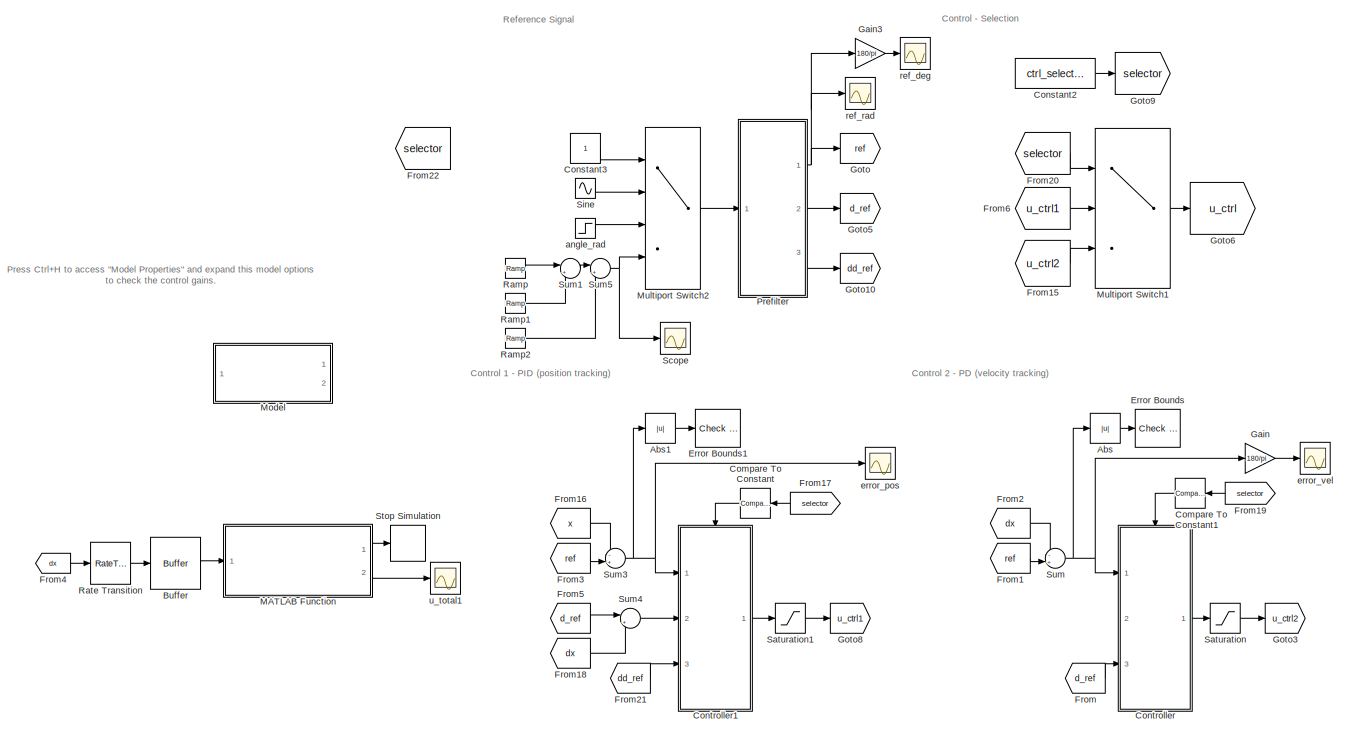
[diagram: root canvas - part 1/2, full width, middle band]
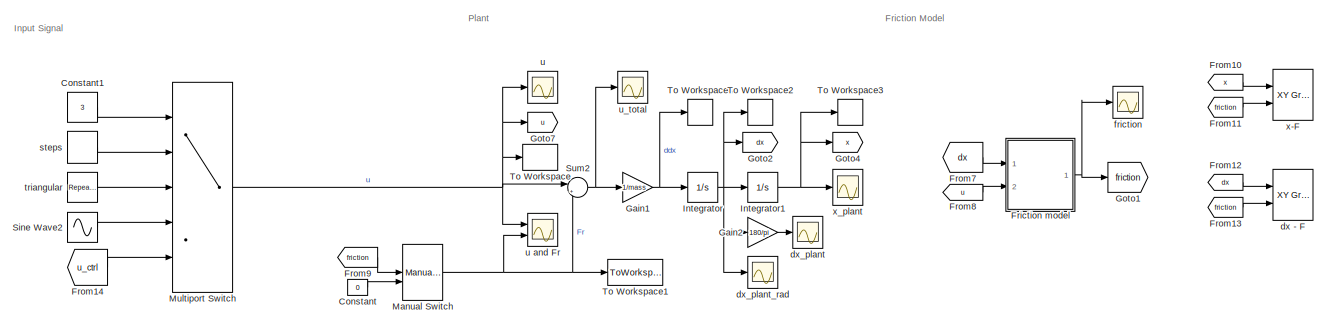
[diagram: root canvas - part 2/2, full width, bottom band]
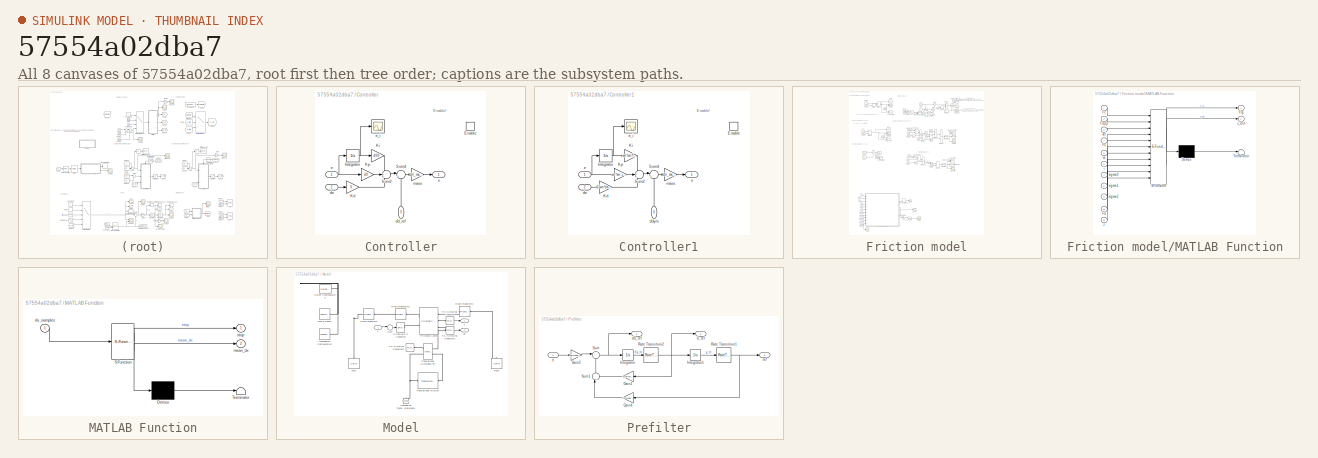
[diagram: thumbnail index - all 8 canvases of the model, root first then tree order]
MODEL slx_57554a02dba7
KIND model
CONFIG AbsTol = auto
CONFIG EnableMultiTasking = off
CONFIG FixedStep = 1e-3
CONFIG MaxStep = auto
CONFIG MinStep = auto
CONFIG RelTol = 1e-3
CONFIG SampleTimeConstraint = Unconstrained
CONFIG Solver = ode8
CONFIG SolverName = ode8
CONFIG StartTime = 0.0
CONFIG StopTime = 10
BLOCK [Abs] Abs
  SaturateOnIntegerOverflow = off
BLOCK [Abs] Abs1
  SaturateOnIntegerOverflow = off
BLOCK [Buffer] Buffer
  Commented = on
  N = 2/ts_buffer_stop
  OutputFrames = off
  V = 2/ts_buffer_stop - 1
  ic = (tol_ss + 1) * ones(2/ts_buffer_stop,1)
BLOCK [Reference] Compare To Constant  REF=simulink/Logic and Bit
Operations/Compare
To Constant
  Ports = [1, 1]
  SourceBlock = simulink/Logic and Bit\nOperations/Compare\nTo Constant
  SourceProductBaseCode = SL
  SourceProductName = Simulink
  SourceType = Compare To Constant
BLOCK [Reference] Compare To Constant1  REF=simulink/Logic and Bit
Operations/Compare
To Constant
  Ports = [1, 1]
  SourceBlock = simulink/Logic and Bit\nOperations/Compare\nTo Constant
  SourceProductBaseCode = SL
  SourceProductName = Simulink
  SourceType = Compare To Constant
BLOCK [Constant] Constant
  Value = 0
BLOCK [Constant] Constant1
  Value = 3
BLOCK [Constant] Constant2
  Value = ctrl_selector
BLOCK [Constant] Constant3
BLOCK [SubSystem] Controller
  Ports = [3, 1, 1]
  RequestExecContextInheritance = off
  Variant = off
BLOCK [EnablePort] Controller/Enable
  Ports = []
BLOCK [Integrator] Controller/Integrator
  Ports = [1, 1]
BLOCK [Gain] Controller/Kd
  Gain = 0
  OutDataTypeStr = Inherit: Inherit via internal rule
  ParamDataTypeStr = Inherit: Inherit via internal rule
  SaturateOnIntegerOverflow = off
BLOCK [Gain] Controller/Ki
  Gain = 400
  OutDataTypeStr = Inherit: Inherit via internal rule
  ParamDataTypeStr = Inherit: Inherit via internal rule
  SaturateOnIntegerOverflow = off
BLOCK [Gain] Controller/Kp
  Gain = 40
  OutDataTypeStr = Inherit: Inherit via internal rule
  ParamDataTypeStr = Inherit: Inherit via internal rule
  SaturateOnIntegerOverflow = off
BLOCK [Sum] Controller/Sum2
  IconShape = round
  InputSameDT = off
  Inputs = +++
  OutDataTypeStr = Inherit: Inherit via internal rule
  Ports = [3, 1]
  SaturateOnIntegerOverflow = off
BLOCK [Sum] Controller/Sum4
  IconShape = round
  InputSameDT = off
  Inputs = |++
  OutDataTypeStr = Inherit: Inherit via internal rule
  Ports = [2, 1]
  SaturateOnIntegerOverflow = off
BLOCK [Inport] Controller/dd_ref
  IconDisplay = Port number
  Port = 3
  SampleTime = ctrl_ts
BLOCK [Inport] Controller/de
  IconDisplay = Port number
  Port = 2
  SampleTime = ctrl_ts
BLOCK [Inport] Controller/e
  IconDisplay = Port number
  SampleTime = ctrl_ts
BLOCK [Scope] Controller/e_i
  NumInputPorts = 1
  Ports = [1]
  ScopeSpecificationString = Simulink.scopes.TimeScopeBlockCfg('CurrentConfiguration', extmgr.ConfigurationSet(extmgr.Configuration('Core','General UI',true),extmgr.Configuration('Core','Source UI',true),extmgr.Configuration('Sources','WiredSimulink',true,'DataLoggingVariableName','ScopeData1'),extmgr.Configuration('Visuals','Time Domain',true,'SerializedDisplays',{struct('MinYLimReal','-0.0000088','MaxYLimReal','0.000001','Y...<+1431ch>
BLOCK [Gain] Controller/mass
  Gain = ctrl_mass
  OutDataTypeStr = Inherit: Inherit via internal rule
  ParamDataTypeStr = Inherit: Inherit via internal rule
  SaturateOnIntegerOverflow = off
BLOCK [Outport] Controller/u
  IconDisplay = Port number
  SampleTime = ctrl_ts
BLOCK [SubSystem] Controller1
  Ports = [3, 1, 1]
  RequestExecContextInheritance = off
  Variant = off
BLOCK [EnablePort] Controller1/Enable
  Ports = []
BLOCK [Integrator] Controller1/Integrator
  Ports = [1, 1]
BLOCK [Gain] Controller1/Kd
  Gain = 2*wn*damp + far
  OutDataTypeStr = Inherit: Inherit via internal rule
  ParamDataTypeStr = Inherit: Inherit via internal rule
  SaturateOnIntegerOverflow = off
BLOCK [Gain] Controller1/Ki
  Gain = wn*wn*far
  OutDataTypeStr = Inherit: Inherit via internal rule
  ParamDataTypeStr = Inherit: Inherit via internal rule
  SaturateOnIntegerOverflow = off
BLOCK [Gain] Controller1/Kp
  Gain = wn*wn + 2*wn*damp*far
  OutDataTypeStr = Inherit: Inherit via internal rule
  ParamDataTypeStr = Inherit: Inherit via internal rule
  SaturateOnIntegerOverflow = off
BLOCK [Sum] Controller1/Sum2
  IconShape = round
  InputSameDT = off
  Inputs = +++
  OutDataTypeStr = Inherit: Inherit via internal rule
  Ports = [3, 1]
  SaturateOnIntegerOverflow = off
BLOCK [Sum] Controller1/Sum4
  IconShape = round
  InputSameDT = off
  Inputs = |++
  OutDataTypeStr = Inherit: Inherit via internal rule
  Ports = [2, 1]
  SaturateOnIntegerOverflow = off
BLOCK [Inport] Controller1/ddym
  IconDisplay = Port number
  Port = 3
  SampleTime = ctrl_ts
BLOCK [Inport] Controller1/de
  IconDisplay = Port number
  Port = 2
  SampleTime = ctrl_ts
BLOCK [Inport] Controller1/e
  IconDisplay = Port number
  SampleTime = ctrl_ts
BLOCK [Scope] Controller1/e_i
  NumInputPorts = 1
  Ports = [1]
  ScopeSpecificationString = Simulink.scopes.TimeScopeBlockCfg('CurrentConfiguration', extmgr.ConfigurationSet(extmgr.Configuration('Core','General UI',true),extmgr.Configuration('Core','Source UI',true),extmgr.Configuration('Sources','WiredSimulink',true,'DataLoggingVariableName','ScopeData1'),extmgr.Configuration('Visuals','Time Domain',true,'SerializedDisplays',{struct('MinYLimReal','-0.000844','MaxYLimReal','-0.000799','Y...<+1427ch>
BLOCK [Gain] Controller1/mass
  Gain = ctrl_mass
  OutDataTypeStr = Inherit: Inherit via internal rule
  ParamDataTypeStr = Inherit: Inherit via internal rule
  SaturateOnIntegerOverflow = off
BLOCK [Outport] Controller1/u
  IconDisplay = Port number
  SampleTime = ctrl_ts
BLOCK [Reference] Error Bounds  REF=checkpacklib/Check Custom Bounds
  InstantiateOnLoad = on
  Ports = [1]
  SourceBlock = checkpacklib/Check Custom Bounds
  SourceType = Checks_CustomBounds
BLOCK [Reference] Error Bounds1  REF=checkpacklib/Check Custom Bounds
  InstantiateOnLoad = on
  Ports = [1]
  SourceBlock = checkpacklib/Check Custom Bounds
  SourceType = Checks_CustomBounds
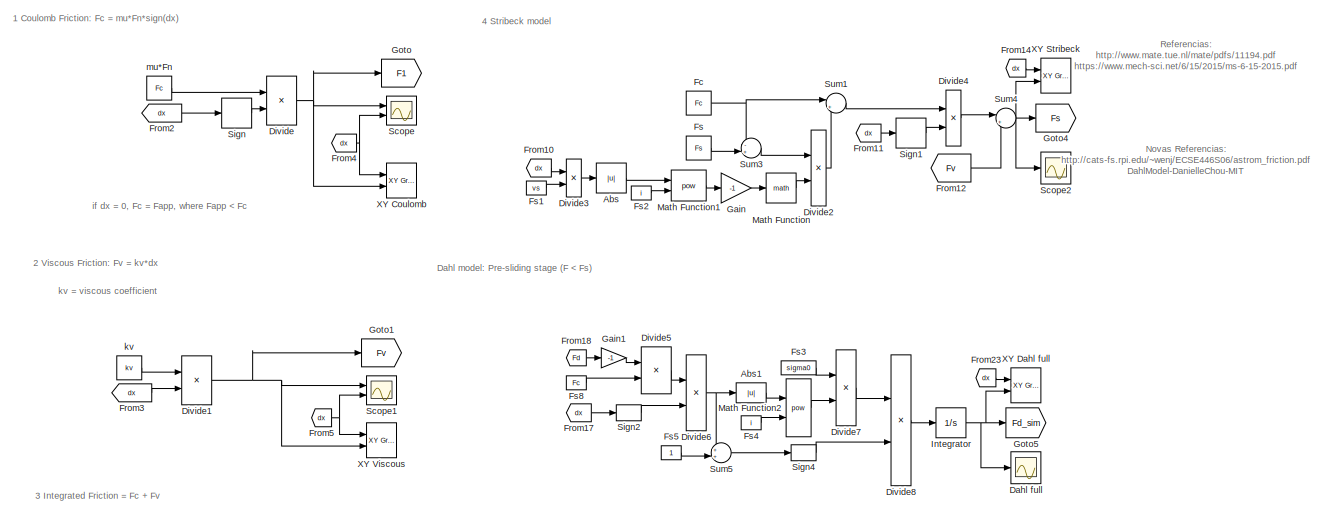
[diagram: Friction model - part 1/2, full width, top band]
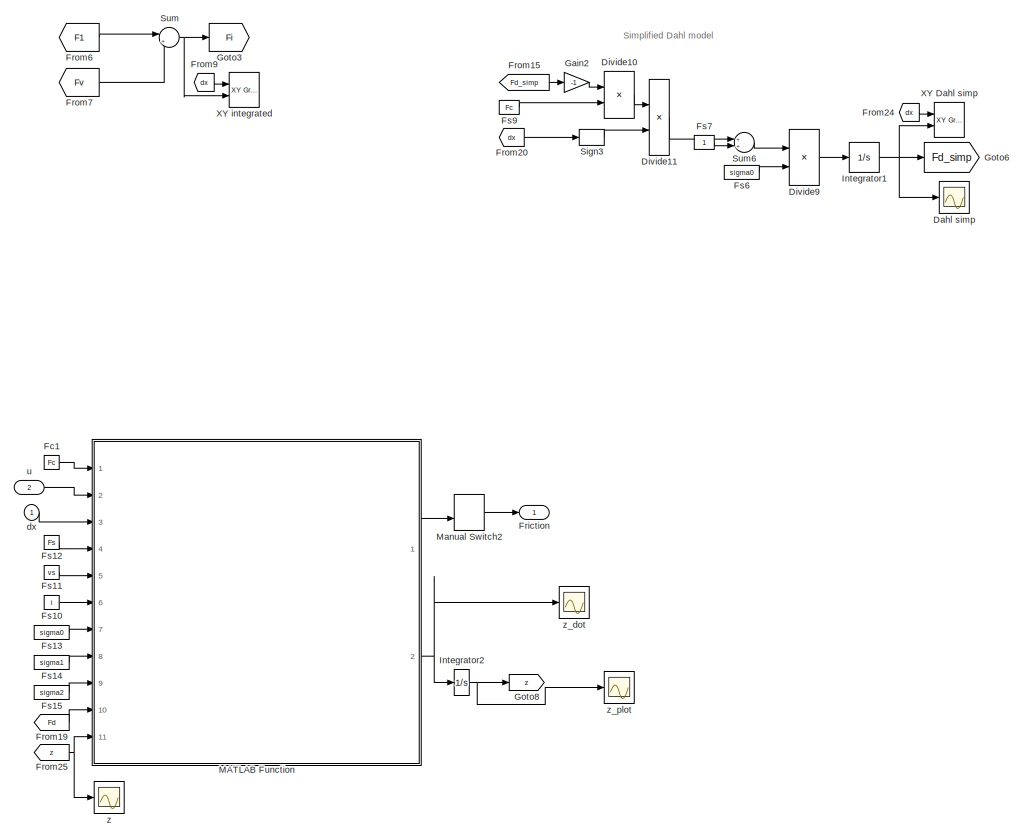
[diagram: Friction model - part 2/2, full width, bottom band]
BLOCK [SubSystem] Friction model
  Ports = [2, 1]
  RequestExecContextInheritance = off
  Variant = off
BLOCK [Abs] Friction model/Abs
  Commented = on
  SaturateOnIntegerOverflow = off
BLOCK [Abs] Friction model/Abs1
  Commented = on
  SaturateOnIntegerOverflow = off
BLOCK [Scope] Friction model/Dahl full
  Commented = on
  NumInputPorts = 1
  Ports = [1]
  ScopeSpecificationString = Simulink.scopes.TimeScopeBlockCfg('CurrentConfiguration', extmgr.ConfigurationSet(extmgr.Configuration('Core','General UI',true),extmgr.Configuration('Core','Source UI',true),extmgr.Configuration('Sources','WiredSimulink',true,'DataLoggingVariableName','ScopeData5'),extmgr.Configuration('Visuals','Time Domain',true,'SerializedDisplays',{struct('MinYLimReal','2.00000','MaxYLimReal','4.00000','YLabe...<+1397ch>
BLOCK [Scope] Friction model/Dahl simp
  Commented = on
  NumInputPorts = 1
  Ports = [1]
  ScopeSpecificationString = Simulink.scopes.TimeScopeBlockCfg('CurrentConfiguration', extmgr.ConfigurationSet(extmgr.Configuration('Core','General UI',true),extmgr.Configuration('Core','Source UI',true),extmgr.Configuration('Sources','WiredSimulink',true,'DataLoggingVariableName','ScopeData6'),extmgr.Configuration('Visuals','Time Domain',true,'SerializedDisplays',{struct('MinYLimReal','2.12965','MaxYLimReal','10.83312','YLab...<+1400ch>
BLOCK [Product] Friction model/Divide
  Commented = on
  InputSameDT = off
  Inputs = **
  OutDataTypeStr = Inherit: Inherit via internal rule
  Ports = [2, 1]
  RndMeth = Floor
  SaturateOnIntegerOverflow = off
BLOCK [Product] Friction model/Divide1
  Commented = on
  InputSameDT = off
  Inputs = **
  OutDataTypeStr = Inherit: Inherit via internal rule
  Ports = [2, 1]
  RndMeth = Floor
  SaturateOnIntegerOverflow = off
BLOCK [Product] Friction model/Divide10
  Commented = on
  InputSameDT = off
  Inputs = */
  OutDataTypeStr = Inherit: Inherit via internal rule
  Ports = [2, 1]
  RndMeth = Floor
  SaturateOnIntegerOverflow = off
BLOCK [Product] Friction model/Divide11
  Commented = on
  InputSameDT = off
  Inputs = **
  OutDataTypeStr = Inherit: Inherit via internal rule
  Ports = [2, 1]
  RndMeth = Floor
  SaturateOnIntegerOverflow = off
BLOCK [Product] Friction model/Divide2
  Commented = on
  InputSameDT = off
  Inputs = **
  OutDataTypeStr = Inherit: Inherit via internal rule
  Ports = [2, 1]
  RndMeth = Floor
  SaturateOnIntegerOverflow = off
BLOCK [Product] Friction model/Divide3
  Commented = on
  InputSameDT = off
  Inputs = */
  OutDataTypeStr = Inherit: Inherit via internal rule
  Ports = [2, 1]
  RndMeth = Floor
  SaturateOnIntegerOverflow = off
BLOCK [Product] Friction model/Divide4
  Commented = on
  InputSameDT = off
  Inputs = **
  OutDataTypeStr = Inherit: Inherit via internal rule
  Ports = [2, 1]
  RndMeth = Floor
  SaturateOnIntegerOverflow = off
BLOCK [Product] Friction model/Divide5
  Commented = on
  InputSameDT = off
  Inputs = */
  OutDataTypeStr = Inherit: Inherit via internal rule
  Ports = [2, 1]
  RndMeth = Floor
  SaturateOnIntegerOverflow = off
BLOCK [Product] Friction model/Divide6
  Commented = on
  InputSameDT = off
  Inputs = **
  OutDataTypeStr = Inherit: Inherit via internal rule
  Ports = [2, 1]
  RndMeth = Floor
  SaturateOnIntegerOverflow = off
BLOCK [Product] Friction model/Divide7
  Commented = on
  InputSameDT = off
  Inputs = **
  OutDataTypeStr = Inherit: Inherit via internal rule
  Ports = [2, 1]
  RndMeth = Floor
  SaturateOnIntegerOverflow = off
BLOCK [Product] Friction model/Divide8
  Commented = on
  InputSameDT = off
  Inputs = **
  OutDataTypeStr = Inherit: Inherit via internal rule
  Ports = [2, 1]
  RndMeth = Floor
  SaturateOnIntegerOverflow = off
BLOCK [Product] Friction model/Divide9
  Commented = on
  InputSameDT = off
  Inputs = **
  OutDataTypeStr = Inherit: Inherit via internal rule
  Ports = [2, 1]
  RndMeth = Floor
  SaturateOnIntegerOverflow = off
BLOCK [Constant] Friction model/Fc
  Commented = on
  Value = Fc
BLOCK [Constant] Friction model/Fc1
  Value = Fc
BLOCK [Outport] Friction model/Friction
  IconDisplay = Port number
BLOCK [From] Friction model/From10
  Commented = on
  GotoTag = dx
BLOCK [From] Friction model/From11
  Commented = on
  GotoTag = dx
BLOCK [From] Friction model/From12
  Commented = on
  GotoTag = Fv
BLOCK [From] Friction model/From14
  Commented = on
  GotoTag = dx
BLOCK [From] Friction model/From15
  Commented = on
  GotoTag = Fd_simp
BLOCK [From] Friction model/From17
  Commented = on
  GotoTag = dx
BLOCK [From] Friction model/From18
  Commented = on
  GotoTag = Fd
BLOCK [From] Friction model/From19
  GotoTag = Fd
BLOCK [From] Friction model/From2
  Commented = on
  GotoTag = dx
BLOCK [From] Friction model/From20
  Commented = on
  GotoTag = dx
BLOCK [From] Friction model/From23
  Commented = on
  GotoTag = dx
BLOCK [From] Friction model/From24
  Commented = on
  GotoTag = dx
BLOCK [From] Friction model/From25
  GotoTag = z
BLOCK [From] Friction model/From3
  Commented = on
  GotoTag = dx
BLOCK [From] Friction model/From4
  Commented = on
  GotoTag = dx
BLOCK [From] Friction model/From5
  Commented = on
  GotoTag = dx
BLOCK [From] Friction model/From6
  Commented = on
  GotoTag = F1
BLOCK [From] Friction model/From7
  Commented = on
  GotoTag = Fv
BLOCK [From] Friction model/From9
  Commented = on
  GotoTag = dx
BLOCK [Constant] Friction model/Fs
  Commented = on
  Value = Fs
BLOCK [Constant] Friction model/Fs1
  Commented = on
  Value = vs
BLOCK [Constant] Friction model/Fs10
  Value = i
BLOCK [Constant] Friction model/Fs11
  Value = vs
BLOCK [Constant] Friction model/Fs12
  Value = Fs
BLOCK [Constant] Friction model/Fs13
  Value = sigma0
BLOCK [Constant] Friction model/Fs14
  Value = sigma1
BLOCK [Constant] Friction model/Fs15
  Value = sigma2
BLOCK [Constant] Friction model/Fs2
  Commented = on
  Value = i
BLOCK [Constant] Friction model/Fs3
  Commented = on
  Value = sigma0
BLOCK [Constant] Friction model/Fs4
  Commented = on
  Value = i
BLOCK [Constant] Friction model/Fs5
  Commented = on
BLOCK [Constant] Friction model/Fs6
  Commented = on
  Value = sigma0
BLOCK [Constant] Friction model/Fs7
  Commented = on
BLOCK [Constant] Friction model/Fs8
  Commented = on
  Value = Fc
BLOCK [Constant] Friction model/Fs9
  Commented = on
  Value = Fc
BLOCK [Gain] Friction model/Gain
  Commented = on
  Gain = -1
  OutDataTypeStr = Inherit: Inherit via internal rule
  ParamDataTypeStr = Inherit: Inherit via internal rule
  SaturateOnIntegerOverflow = off
BLOCK [Gain] Friction model/Gain1
  Commented = on
  Gain = -1
  OutDataTypeStr = Inherit: Inherit via internal rule
  ParamDataTypeStr = Inherit: Inherit via internal rule
  SaturateOnIntegerOverflow = off
BLOCK [Gain] Friction model/Gain2
  Commented = on
  Gain = -1
  OutDataTypeStr = Inherit: Inherit via internal rule
  ParamDataTypeStr = Inherit: Inherit via internal rule
  SaturateOnIntegerOverflow = off
BLOCK [Goto] Friction model/Goto
  Commented = on
  GotoTag = F1
BLOCK [Goto] Friction model/Goto1
  Commented = on
  GotoTag = Fv
BLOCK [Goto] Friction model/Goto3
  Commented = on
  GotoTag = Fi
BLOCK [Goto] Friction model/Goto4
  Commented = on
  GotoTag = Fs
BLOCK [Goto] Friction model/Goto5
  Commented = on
  GotoTag = Fd_sim
BLOCK [Goto] Friction model/Goto6
  Commented = on
  GotoTag = Fd_simp
BLOCK [Goto] Friction model/Goto8
  GotoTag = z
BLOCK [Integrator] Friction model/Integrator
  Commented = on
  InitialCondition = Fc
  Ports = [1, 1]
BLOCK [Integrator] Friction model/Integrator1
  Commented = on
  InitialCondition = Fc
  Ports = [1, 1]
BLOCK [Integrator] Friction model/Integrator2
  Ports = [1, 1]
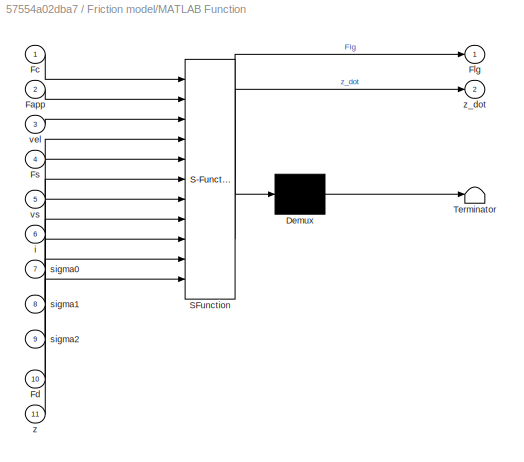
BLOCK [SubSystem] Friction model/MATLAB Function
  ErrorFcn = Stateflow.Translate.translate
  PermitHierarchicalResolution = ExplicitOnly
  Ports = [11, 2]
  RequestExecContextInheritance = off
  SFBlockType = MATLAB Function
  TreatAsAtomicUnit = on
  Variant = off
BLOCK [Demux] Friction model/MATLAB Function/ Demux 
  Outputs = 1
  Ports = [1, 1]
BLOCK [S-Function] Friction model/MATLAB Function/ SFunction 
  EnableBusSupport = on
  FunctionName = sf_sfun
  PortCounts = [11 3]
  Ports = [11, 3]
  SFcnIsStateOwnerBlock = off
  SFunctionDeploymentMode = off
  Tag = Stateflow S-Function LuGre_model 2
BLOCK [Terminator] Friction model/MATLAB Function/ Terminator 
BLOCK [Inport] Friction model/MATLAB Function/Fapp
  IconDisplay = Port number
  Port = 2
BLOCK [Inport] Friction model/MATLAB Function/Fc
  IconDisplay = Port number
BLOCK [Inport] Friction model/MATLAB Function/Fd
  IconDisplay = Port number
  Port = 10
BLOCK [Outport] Friction model/MATLAB Function/Flg
  IconDisplay = Port number
BLOCK [Inport] Friction model/MATLAB Function/Fs
  IconDisplay = Port number
  Port = 4
BLOCK [Inport] Friction model/MATLAB Function/i
  IconDisplay = Port number
  Port = 6
BLOCK [Inport] Friction model/MATLAB Function/sigma0
  IconDisplay = Port number
  Port = 7
BLOCK [Inport] Friction model/MATLAB Function/sigma1
  IconDisplay = Port number
  Port = 8
BLOCK [Inport] Friction model/MATLAB Function/sigma2
  IconDisplay = Port number
  Port = 9
BLOCK [Inport] Friction model/MATLAB Function/vel
  IconDisplay = Port number
  Port = 3
BLOCK [Inport] Friction model/MATLAB Function/vs
  IconDisplay = Port number
  Port = 5
BLOCK [Inport] Friction model/MATLAB Function/z
  IconDisplay = Port number
  Port = 11
BLOCK [Outport] Friction model/MATLAB Function/z_dot
  IconDisplay = Port number
  Port = 2
BLOCK [ManualSwitch] Friction model/Manual Switch2
  CurrentSetting = 0
BLOCK [Math] Friction model/Math Function
  Commented = on
  Ports = [1, 1]
BLOCK [Math] Friction model/Math Function1
  Commented = on
  Operator = pow
  Ports = [2, 1]
BLOCK [Math] Friction model/Math Function2
  Commented = on
  Operator = pow
  Ports = [2, 1]
BLOCK [Scope] Friction model/Scope
  Commented = on
  NumInputPorts = 2
  Ports = [2]
  ScopeSpecificationString = Simulink.scopes.TimeScopeBlockCfg('CurrentConfiguration', extmgr.ConfigurationSet(extmgr.Configuration('Core','General UI',true),extmgr.Configuration('Core','Source UI',true),extmgr.Configuration('Sources','WiredSimulink',true,'DataLoggingVariableName','ScopeData1'),extmgr.Configuration('Visuals','Time Domain',true,'SerializedDisplays',{struct('MinYLimReal','-3.75','MaxYLimReal','3.75','YLabelReal...<+1400ch>
BLOCK [Scope] Friction model/Scope1
  Commented = on
  NumInputPorts = 2
  Ports = [2]
  ScopeSpecificationString = Simulink.scopes.TimeScopeBlockCfg('CurrentConfiguration', extmgr.ConfigurationSet(extmgr.Configuration('Core','General UI',true),extmgr.Configuration('Core','Source UI',true),extmgr.Configuration('Sources','WiredSimulink',true,'DataLoggingVariableName','ScopeData1'),extmgr.Configuration('Visuals','Time Domain',true,'SerializedDisplays',{struct('MinYLimReal','-12.5','MaxYLimReal','12.5','YLabelReal...<+1381ch>
BLOCK [Scope] Friction model/Scope2
  Commented = on
  NumInputPorts = 1
  Ports = [1]
  ScopeSpecificationString = Simulink.scopes.TimeScopeBlockCfg('CurrentConfiguration', extmgr.ConfigurationSet(extmgr.Configuration('Core','General UI',true),extmgr.Configuration('Core','Source UI',true),extmgr.Configuration('Sources','WiredSimulink',true,'DataLoggingVariableName','ScopeData1'),extmgr.Configuration('Visuals','Time Domain',true,'SerializedDisplays',{struct('MinYLimReal','-15.95965','MaxYLimReal','14.73886','YL...<+1398ch>
BLOCK [Signum] Friction model/Sign
  Commented = on
BLOCK [Signum] Friction model/Sign1
  Commented = on
BLOCK [Signum] Friction model/Sign2
  Commented = on
BLOCK [Signum] Friction model/Sign3
  Commented = on
BLOCK [Signum] Friction model/Sign4
  Commented = on
BLOCK [Sum] Friction model/Sum
  Commented = on
  IconShape = round
  InputSameDT = off
  Inputs = |++
  OutDataTypeStr = Inherit: Inherit via internal rule
  Ports = [2, 1]
  SaturateOnIntegerOverflow = off
BLOCK [Sum] Friction model/Sum1
  Commented = on
  IconShape = round
  InputSameDT = off
  Inputs = |++
  OutDataTypeStr = Inherit: Inherit via internal rule
  Ports = [2, 1]
  SaturateOnIntegerOverflow = off
BLOCK [Sum] Friction model/Sum3
  Commented = on
  IconShape = round
  InputSameDT = off
  Inputs = -+|
  OutDataTypeStr = Inherit: Inherit via internal rule
  Ports = [2, 1]
  SaturateOnIntegerOverflow = off
BLOCK [Sum] Friction model/Sum4
  Commented = on
  IconShape = round
  InputSameDT = off
  Inputs = |++
  OutDataTypeStr = Inherit: Inherit via internal rule
  Ports = [2, 1]
  SaturateOnIntegerOverflow = off
BLOCK [Sum] Friction model/Sum5
  Commented = on
  IconShape = round
  InputSameDT = off
  Inputs = ++|
  OutDataTypeStr = Inherit: Inherit via internal rule
  Ports = [2, 1]
  SaturateOnIntegerOverflow = off
BLOCK [Sum] Friction model/Sum6
  Commented = on
  IconShape = round
  InputSameDT = off
  Inputs = ++|
  OutDataTypeStr = Inherit: Inherit via internal rule
  Ports = [2, 1]
  SaturateOnIntegerOverflow = off
BLOCK [Reference] Friction model/XY Coulomb  REF=simulink/Sinks/XY Graph
  Commented = on
  Ports = [2]
  SourceBlock = simulink/Sinks/XY Graph
  SourceProductBaseCode = SL
  SourceProductName = Simulink
  SourceType = XY scope.
BLOCK [Reference] Friction model/XY Dahl full  REF=simulink/Sinks/XY Graph
  Commented = on
  Ports = [2]
  SourceBlock = simulink/Sinks/XY Graph
  SourceProductBaseCode = SL
  SourceProductName = Simulink
  SourceType = XY scope.
BLOCK [Reference] Friction model/XY Dahl simp  REF=simulink/Sinks/XY Graph
  Commented = on
  Ports = [2]
  SourceBlock = simulink/Sinks/XY Graph
  SourceProductBaseCode = SL
  SourceProductName = Simulink
  SourceType = XY scope.
BLOCK [Reference] Friction model/XY Stribeck  REF=simulink/Sinks/XY Graph
  Commented = on
  Ports = [2]
  SourceBlock = simulink/Sinks/XY Graph
  SourceProductBaseCode = SL
  SourceProductName = Simulink
  SourceType = XY scope.
BLOCK [Reference] Friction model/XY Viscous  REF=simulink/Sinks/XY Graph
  Commented = on
  Ports = [2]
  SourceBlock = simulink/Sinks/XY Graph
  SourceProductBaseCode = SL
  SourceProductName = Simulink
  SourceType = XY scope.
BLOCK [Reference] Friction model/XY integrated  REF=simulink/Sinks/XY Graph
  Commented = on
  Ports = [2]
  SourceBlock = simulink/Sinks/XY Graph
  SourceProductBaseCode = SL
  SourceProductName = Simulink
  SourceType = XY scope.
BLOCK [Inport] Friction model/dx
  IconDisplay = Port number
BLOCK [Constant] Friction model/kv
  Commented = on
  Value = kv
BLOCK [Constant] Friction model/mu*Fn
  Commented = on
  Value = Fc
BLOCK [Inport] Friction model/u
  IconDisplay = Port number
  Port = 2
BLOCK [Scope] Friction model/z
  NumInputPorts = 1
  Ports = [1]
  ScopeSpecificationString = Simulink.scopes.TimeScopeBlockCfg('CurrentConfiguration', extmgr.ConfigurationSet(extmgr.Configuration('Core','General UI',true),extmgr.Configuration('Core','Source UI',true),extmgr.Configuration('Sources','WiredSimulink',true,'DataLoggingVariableName','ScopeData4'),extmgr.Configuration('Visuals','Time Domain',true,'SerializedDisplays',{struct('MinYLimReal','-0.0000009','MaxYLimReal','0.0000082','...<+1459ch>
BLOCK [Scope] Friction model/z_dot
  NumInputPorts = 1
  Ports = [1]
  ScopeSpecificationString = Simulink.scopes.TimeScopeBlockCfg('CurrentConfiguration', extmgr.ConfigurationSet(extmgr.Configuration('Core','General UI',true),extmgr.Configuration('Core','Source UI',true),extmgr.Configuration('Sources','WiredSimulink',true,'DataLoggingVariableName','ScopeData1'),extmgr.Configuration('Visuals','Time Domain',true,'SerializedDisplays',{struct('MinYLimReal','-0.0058','MaxYLimReal','0.00325','YLabe...<+1447ch>
BLOCK [Scope] Friction model/z_plot
  NumInputPorts = 1
  Ports = [1]
  ScopeSpecificationString = Simulink.scopes.TimeScopeBlockCfg('CurrentConfiguration', extmgr.ConfigurationSet(extmgr.Configuration('Core','General UI',true),extmgr.Configuration('Core','Source UI',true),extmgr.Configuration('Sources','WiredSimulink',true,'DataLoggingVariableName','ScopeData2'),extmgr.Configuration('Visuals','Time Domain',true,'SerializedDisplays',{struct('MinYLimReal','-0.00000049','MaxYLimReal','0.00000049'...<+1445ch>
BLOCK [From] From
  GotoTag = d_ref
  TagVisibility = global
BLOCK [From] From1
  GotoTag = ref
  TagVisibility = global
BLOCK [From] From10
  GotoTag = x
  TagVisibility = global
BLOCK [From] From11
  GotoTag = friction
BLOCK [From] From12
  GotoTag = dx
  TagVisibility = global
BLOCK [From] From13
  GotoTag = friction
BLOCK [From] From14
  GotoTag = u_ctrl
BLOCK [From] From15
  GotoTag = u_ctrl2
  TagVisibility = global
BLOCK [From] From16
  GotoTag = x
  TagVisibility = global
BLOCK [From] From17
  GotoTag = selector
BLOCK [From] From18
  GotoTag = dx
  TagVisibility = global
BLOCK [From] From19
  GotoTag = selector
BLOCK [From] From2
  GotoTag = dx
  TagVisibility = global
BLOCK [From] From20
  GotoTag = selector
BLOCK [From] From21
  GotoTag = dd_ref
  TagVisibility = global
BLOCK [From] From22
  GotoTag = selector
BLOCK [From] From3
  GotoTag = ref
  TagVisibility = global
BLOCK [From] From4
  Commented = on
  GotoTag = dx
  TagVisibility = global
BLOCK [From] From5
  GotoTag = d_ref
  TagVisibility = global
BLOCK [From] From6
  GotoTag = u_ctrl1
  TagVisibility = global
BLOCK [From] From7
  GotoTag = dx
  TagVisibility = global
BLOCK [From] From8
  GotoTag = u
  TagVisibility = global
BLOCK [From] From9
  GotoTag = friction
BLOCK [Gain] Gain
  Gain = 180/pi
  OutDataTypeStr = Inherit: Inherit via internal rule
  ParamDataTypeStr = Inherit: Inherit via internal rule
  SaturateOnIntegerOverflow = off
BLOCK [Gain] Gain1
  Gain = 1/mass
  OutDataTypeStr = Inherit: Inherit via internal rule
  ParamDataTypeStr = Inherit: Inherit via internal rule
  SaturateOnIntegerOverflow = off
BLOCK [Gain] Gain2
  Gain = 180/pi
  OutDataTypeStr = Inherit: Inherit via internal rule
  ParamDataTypeStr = Inherit: Inherit via internal rule
  SaturateOnIntegerOverflow = off
BLOCK [Gain] Gain3
  Gain = 180/pi
  OutDataTypeStr = Inherit: Inherit via internal rule
  ParamDataTypeStr = Inherit: Inherit via internal rule
  SaturateOnIntegerOverflow = off
BLOCK [Goto] Goto
  GotoTag = ref
  TagVisibility = global
BLOCK [Goto] Goto1
  GotoTag = friction
BLOCK [Goto] Goto10
  GotoTag = dd_ref
  TagVisibility = global
BLOCK [Goto] Goto2
  GotoTag = dx
  TagVisibility = global
BLOCK [Goto] Goto3
  GotoTag = u_ctrl2
  TagVisibility = global
BLOCK [Goto] Goto4
  GotoTag = x
  TagVisibility = global
BLOCK [Goto] Goto5
  GotoTag = d_ref
  TagVisibility = global
BLOCK [Goto] Goto6
  GotoTag = u_ctrl
BLOCK [Goto] Goto7
  GotoTag = u
  TagVisibility = global
BLOCK [Goto] Goto8
  GotoTag = u_ctrl1
  TagVisibility = global
BLOCK [Goto] Goto9
  GotoTag = selector
BLOCK [Integrator] Integrator
  Ports = [1, 1]
BLOCK [Integrator] Integrator1
  Ports = [1, 1]
BLOCK [SubSystem] MATLAB Function
  Commented = on
  ErrorFcn = Stateflow.Translate.translate
  PermitHierarchicalResolution = ExplicitOnly
  Ports = [1, 2]
  RequestExecContextInheritance = off
  SFBlockType = MATLAB Function
  TreatAsAtomicUnit = on
  Variant = off
BLOCK [Demux] MATLAB Function/ Demux 
  Outputs = 1
  Ports = [1, 1]
BLOCK [S-Function] MATLAB Function/ SFunction 
  EnableBusSupport = on
  FunctionName = sf_sfun
  Parameters = tol_ss
  PortCounts = [1 3]
  Ports = [1, 3]
  SFcnIsStateOwnerBlock = off
  SFunctionDeploymentMode = off
  Tag = Stateflow S-Function LuGre_model 1
BLOCK [Terminator] MATLAB Function/ Terminator 
BLOCK [Inport] MATLAB Function/dx_samples
  IconDisplay = Port number
BLOCK [Outport] MATLAB Function/mean_dx
  IconDisplay = Port number
  Port = 2
BLOCK [Outport] MATLAB Function/stop
  IconDisplay = Port number
BLOCK [ManualSwitch] Manual Switch
BLOCK [SubSystem] Model
  Commented = on
  Ports = [1, 2]
  RequestExecContextInheritance = off
  Variant = off
BLOCK [Reference] Model/Mass  REF=sm_lib/Body Elements/Solid
  Ports = [0, 0, 0, 0, 0, 0, 1]
  SourceBlock = sm_lib/Body Elements/Solid
  SourceProductBaseCode = MS
  SourceProductName = Simscape Multibody
  SourceType = Solid
BLOCK [Reference] Model/Mechanical Translational Reference  REF=fl_lib/Mechanical/Translational
Elements/Mechanical
Translational
Reference
  Commented = on
  Ports = [0, 0, 0, 0, 0, 1]
  SourceBlock = fl_lib/Mechanical/Translational\nElements/Mechanical\nTranslational\nReference
  SourceProductBaseCode = SS
  SourceProductName = Simscape
  SourceType = Mechanical\nTranslational\nReference
BLOCK [Reference] Model/Mechanism Configuration  REF=sm_lib/Utilities/Mechanism
Configuration
  Ports = [0, 0, 0, 0, 0, 0, 1]
  SourceBlock = sm_lib/Utilities/Mechanism\nConfiguration
  SourceProductBaseCode = MS
  SourceProductName = Simscape Multibody
  SourceType = Mechanism\nConfiguration
BLOCK [Reference] Model/PS-Simulink Converter  REF=nesl_utility/PS-Simulink
Converter
  Ports = [0, 1, 0, 0, 0, 1]
  SourceBlock = nesl_utility/PS-Simulink\nConverter
  SourceProductBaseCode = SS
  SourceProductName = Simscape
  SourceType = PS-Simulink\nConverter
BLOCK [Reference] Model/PS-Simulink Converter1  REF=nesl_utility/PS-Simulink
Converter
  Ports = [0, 1, 0, 0, 0, 1]
  SourceBlock = nesl_utility/PS-Simulink\nConverter
  SourceProductBaseCode = SS
  SourceProductName = Simscape
  SourceType = PS-Simulink\nConverter
BLOCK [Reference] Model/PS-Simulink Converter2  REF=nesl_utility/PS-Simulink
Converter
  Commented = on
  Ports = [0, 1, 0, 0, 0, 1]
  SourceBlock = nesl_utility/PS-Simulink\nConverter
  SourceProductBaseCode = SS
  SourceProductName = Simscape
  SourceType = PS-Simulink\nConverter
BLOCK [Reference] Model/Prismatic Joint  REF=sm_lib/Joints/Prismatic
Joint
  Ports = [0, 0, 0, 0, 0, 2, 3]
  SourceBlock = sm_lib/Joints/Prismatic\nJoint
  SourceProductBaseCode = MS
  SourceProductName = Simscape Multibody
  SourceType = Prismatic\nJoint
BLOCK [Reference] Model/Rigid Transform  REF=sm_lib/Frames and
Transforms/Rigid
Transform
  Ports = [0, 0, 0, 0, 0, 1, 1]
  SourceBlock = sm_lib/Frames and\nTransforms/Rigid\nTransform
  SourceProductBaseCode = MS
  SourceProductName = Simscape Multibody
  SourceType = Rigid\nTransform
BLOCK [Reference] Model/Rigid Transform1  REF=sm_lib/Frames and
Transforms/Rigid
Transform
  Ports = [0, 0, 0, 0, 0, 1, 1]
  SourceBlock = sm_lib/Frames and\nTransforms/Rigid\nTransform
  SourceProductBaseCode = MS
  SourceProductName = Simscape Multibody
  SourceType = Rigid\nTransform
BLOCK [Reference] Model/Rigid Transform2  REF=sm_lib/Frames and
Transforms/Rigid
Transform
  Ports = [0, 0, 0, 0, 0, 1, 1]
  SourceBlock = sm_lib/Frames and\nTransforms/Rigid\nTransform
  SourceProductBaseCode = MS
  SourceProductName = Simscape Multibody
  SourceType = Rigid\nTransform
BLOCK [Reference] Model/Simulink-PS Converter  REF=nesl_utility/Simulink-PS
Converter
  Ports = [1, 0, 0, 0, 0, 0, 1]
  SourceBlock = nesl_utility/Simulink-PS\nConverter
  SourceProductBaseCode = SS
  SourceProductName = Simscape
  SourceType = Simulink-PS\nConverter
BLOCK [Reference] Model/Solver Configuration  REF=nesl_utility/Solver
Configuration
  Ports = [0, 0, 0, 0, 0, 0, 1]
  SourceBlock = nesl_utility/Solver\nConfiguration
  SourceProductBaseCode = SS
  SourceProductName = Simscape
  SourceType = Solver\nConfiguration
BLOCK [Sum] Model/Sum
  IconShape = round
  InputSameDT = off
  Inputs = |++
  OutDataTypeStr = Inherit: Inherit via internal rule
  Ports = [2, 1]
  SaturateOnIntegerOverflow = off
BLOCK [Reference] Model/Translational Friction  REF=fl_lib/Mechanical/Translational
Elements/Translational
Friction
  Commented = on
  Ports = [0, 0, 0, 0, 0, 1, 1]
  SourceBlock = fl_lib/Mechanical/Translational\nElements/Translational\nFriction
  SourceProductBaseCode = SS
  SourceProductName = Simscape
  SourceType = Translational\nFriction
BLOCK [Reference] Model/Translational Simscape Intf  REF=Multibody_Multiphysics_Lib/Interfaces/Translational
Simscape Intf
  Commented = on
  Ports = [0, 0, 0, 0, 0, 2, 2]
  SourceBlock = Multibody_Multiphysics_Lib/Interfaces/Translational\nSimscape Intf
  SourceProductName = Simscape Multibody Multiphysics Library
  SourceType = SubSystem
BLOCK [Reference] Model/Wall  REF=sm_lib/Body Elements/Solid
  Ports = [0, 0, 0, 0, 0, 0, 1]
  SourceBlock = sm_lib/Body Elements/Solid
  SourceProductBaseCode = MS
  SourceProductName = Simscape Multibody
  SourceType = Solid
BLOCK [Reference] Model/World Frame  REF=sm_lib/Frames and
Transforms/World Frame
  Ports = [0, 0, 0, 0, 0, 0, 1]
  SourceBlock = sm_lib/Frames and\nTransforms/World Frame
  SourceProductBaseCode = MS
  SourceProductName = Simscape Multibody
  SourceType = World Frame
BLOCK [Outport] Model/dx
  IconDisplay = Port number
  Port = 2
BLOCK [Inport] Model/u
  IconDisplay = Port number
BLOCK [Outport] Model/x
  IconDisplay = Port number
BLOCK [MultiPortSwitch] Multiport Switch
  InputSameDT = off
  Inputs = 4
  Ports = [5, 1]
  SaturateOnIntegerOverflow = off
BLOCK [MultiPortSwitch] Multiport Switch1
  InputSameDT = off
  Inputs = 2
  Ports = [3, 1]
  SaturateOnIntegerOverflow = off
BLOCK [MultiPortSwitch] Multiport Switch2
  InputSameDT = off
  Ports = [4, 1]
  SaturateOnIntegerOverflow = off
BLOCK [SubSystem] Prefilter
  Ports = [1, 3]
  RequestExecContextInheritance = off
  Variant = off
BLOCK [Gain] Prefilter/Gain1
  Gain = 2*refmodel_eta*refmodel_wn
  OutDataTypeStr = Inherit: Inherit via internal rule
  ParamDataTypeStr = Inherit: Inherit via internal rule
  SaturateOnIntegerOverflow = off
BLOCK [Gain] Prefilter/Gain2
  Gain = refmodel_wn^2
  OutDataTypeStr = Inherit: Inherit via internal rule
  ParamDataTypeStr = Inherit: Inherit via internal rule
  SaturateOnIntegerOverflow = off
BLOCK [Gain] Prefilter/Gain4
  Gain = refmodel_wn^2
  OutDataTypeStr = Inherit: Inherit via internal rule
  ParamDataTypeStr = Inherit: Inherit via internal rule
  SaturateOnIntegerOverflow = off
BLOCK [Integrator] Prefilter/Integrator
  Ports = [1, 1]
BLOCK [Integrator] Prefilter/Integrator1
  Ports = [1, 1]
BLOCK [RateTransition] Prefilter/Rate Transition1
  OutPortSampleTime = ctrl_ts
BLOCK [RateTransition] Prefilter/Rate Transition2
  OutPortSampleTime = ctrl_ts
BLOCK [Sum] Prefilter/Sum
  IconShape = round
  InputSameDT = off
  Inputs = |+-
  OutDataTypeStr = Inherit: Inherit via internal rule
  Ports = [2, 1]
  SaturateOnIntegerOverflow = off
BLOCK [Sum] Prefilter/Sum1
  IconShape = round
  InputSameDT = off
  Inputs = |++
  OutDataTypeStr = Inherit: Inherit via internal rule
  Ports = [2, 1]
  SaturateOnIntegerOverflow = off
BLOCK [Outport] Prefilter/d_ref
  IconDisplay = Port number
  Port = 2
BLOCK [Outport] Prefilter/dd_ref
  IconDisplay = Port number
  Port = 3
BLOCK [Outport] Prefilter/ref
  IconDisplay = Port number
BLOCK [Inport] Prefilter/y
  IconDisplay = Port number
BLOCK [Reference] Ramp  REF=simulink/Sources/Ramp
  Ports = [0, 1]
  SourceBlock = simulink/Sources/Ramp
  SourceProductBaseCode = SL
  SourceProductName = Simulink
  SourceType = Ramp
BLOCK [Reference] Ramp1  REF=simulink/Sources/Ramp
  Ports = [0, 1]
  SourceBlock = simulink/Sources/Ramp
  SourceProductBaseCode = SL
  SourceProductName = Simulink
  SourceType = Ramp
BLOCK [Reference] Ramp2  REF=simulink/Sources/Ramp
  Ports = [0, 1]
  SourceBlock = simulink/Sources/Ramp
  SourceProductBaseCode = SL
  SourceProductName = Simulink
  SourceType = Ramp
BLOCK [RateTransition] Rate Transition
  Commented = on
  OutPortSampleTime = ts_buffer_stop
BLOCK [Saturate] Saturation
  InputPortMap = u0
  LowerLimit = -20
  Ports = [1, 1]
  UpperLimit = 20
BLOCK [Saturate] Saturation1
  InputPortMap = u0
  LowerLimit = -20
  Ports = [1, 1]
  UpperLimit = 20
BLOCK [Scope] Scope
  NumInputPorts = 1
  Ports = [1]
  ScopeSpecificationString = Simulink.scopes.TimeScopeBlockCfg('CurrentConfiguration', extmgr.ConfigurationSet(extmgr.Configuration('Core','General UI',true),extmgr.Configuration('Core','Source UI',true),extmgr.Configuration('Sources','WiredSimulink',true,'DataLoggingVariableName','ScopeData1'),extmgr.Configuration('Visuals','Time Domain',true,'SerializedDisplays',{struct('MinYLimReal','-0.0125','MaxYLimReal','0.1125','YLabel...<+1441ch>
BLOCK [Sin] Sine 
  Amplitude = 0.08
  Frequency = 2*pi/4
  Ports = [0, 1]
  SampleTime = 0
BLOCK [Sin] Sine Wave2
  Amplitude = Fs * 0.5
  Frequency = 2*pi
  Ports = [0, 1]
  SampleTime = ctrl_ts
BLOCK [Stop] Stop Simulation
  Commented = on
BLOCK [Sum] Sum
  IconShape = round
  InputSameDT = off
  Inputs = -+|
  OutDataTypeStr = Inherit: Inherit via internal rule
  Ports = [2, 1]
  SaturateOnIntegerOverflow = off
BLOCK [Sum] Sum1
  IconShape = round
  InputSameDT = off
  Inputs = |++
  OutDataTypeStr = Inherit: Inherit via internal rule
  Ports = [2, 1]
  SaturateOnIntegerOverflow = off
BLOCK [Sum] Sum2
  IconShape = round
  InputSameDT = off
  Inputs = |+-
  OutDataTypeStr = Inherit: Inherit via internal rule
  Ports = [2, 1]
  SaturateOnIntegerOverflow = off
BLOCK [Sum] Sum3
  IconShape = round
  InputSameDT = off
  Inputs = -+|
  OutDataTypeStr = Inherit: Inherit via internal rule
  Ports = [2, 1]
  SaturateOnIntegerOverflow = off
BLOCK [Sum] Sum4
  IconShape = round
  InputSameDT = off
  Inputs = |+-
  OutDataTypeStr = Inherit: Inherit via internal rule
  Ports = [2, 1]
  SaturateOnIntegerOverflow = off
BLOCK [Sum] Sum5
  IconShape = round
  InputSameDT = off
  Inputs = |++
  OutDataTypeStr = Inherit: Inherit via internal rule
  Ports = [2, 1]
  SaturateOnIntegerOverflow = off
BLOCK [ToWorkspace] To Workspace
  FixptAsFi = on
  MaxDataPoints = inf
  Ports = [1]
  SampleTime = -1
  Save2DSignal = 3-D array (concatenate along third dimension)
  SaveFormat = Structure With Time
  VariableName = input_signal
BLOCK [ToWorkspace] To Workspace1
  FixptAsFi = on
  MaxDataPoints = inf
  Ports = [1]
  SampleTime = -1
  Save2DSignal = 3-D array (concatenate along third dimension)
  SaveFormat = Structure With Time
  VariableName = friction
BLOCK [ToWorkspace] To Workspace2
  FixptAsFi = on
  MaxDataPoints = inf
  Ports = [1]
  SampleTime = -1
  Save2DSignal = 3-D array (concatenate along third dimension)
  SaveFormat = Structure With Time
  VariableName = dx
BLOCK [ToWorkspace] To Workspace3
  FixptAsFi = on
  MaxDataPoints = inf
  Ports = [1]
  SampleTime = -1
  Save2DSignal = 3-D array (concatenate along third dimension)
  SaveFormat = Structure With Time
  VariableName = x
BLOCK [ToWorkspace] To Workspace4
  FixptAsFi = on
  MaxDataPoints = inf
  Ports = [1]
  SampleTime = -1
  Save2DSignal = 3-D array (concatenate along third dimension)
  SaveFormat = Structure With Time
  VariableName = ddx
BLOCK [Step] angle_rad
  After = ref_angle
  SampleTime = 0
  Time = 0
BLOCK [Reference] dx - F  REF=simulink/Sinks/XY Graph
  Ports = [2]
  SourceBlock = simulink/Sinks/XY Graph
  SourceProductBaseCode = SL
  SourceProductName = Simulink
  SourceType = XY scope.
BLOCK [Scope] dx_plant
  NumInputPorts = 1
  Ports = [1]
  ScopeSpecificationString = Simulink.scopes.TimeScopeBlockCfg('CurrentConfiguration', extmgr.ConfigurationSet(extmgr.Configuration('Core','General UI',true),extmgr.Configuration('Core','Source UI',true),extmgr.Configuration('Sources','WiredSimulink',true,'DataLoggingVariableName','ScopeData2'),extmgr.Configuration('Visuals','Time Domain',true,'SerializedDisplays',{struct('MinYLimReal','-0.1545','MaxYLimReal','0.15808','YLabe...<+1414ch>
BLOCK [Scope] dx_plant_rad
  NumInputPorts = 1
  Ports = [1]
  ScopeSpecificationString = Simulink.scopes.TimeScopeBlockCfg('CurrentConfiguration', extmgr.ConfigurationSet(extmgr.Configuration('Core','General UI',true),extmgr.Configuration('Core','Source UI',true),extmgr.Configuration('Sources','WiredSimulink',true,'DataLoggingVariableName','ScopeData1'),extmgr.Configuration('Visuals','Time Domain',true,'SerializedDisplays',{struct('MinYLimReal','-0.03679','MaxYLimReal','0.33115','YLab...<+1442ch>
BLOCK [Scope] error_pos
  NumInputPorts = 1
  Ports = [1]
  ScopeSpecificationString = Simulink.scopes.TimeScopeBlockCfg('CurrentConfiguration', extmgr.ConfigurationSet(extmgr.Configuration('Core','General UI',true),extmgr.Configuration('Core','Source UI',true),extmgr.Configuration('Sources','WiredSimulink',true,'DataLoggingVariableName','ScopeData1'),extmgr.Configuration('Visuals','Time Domain',true,'SerializedDisplays',{struct('MinYLimReal','-0.02395','MaxYLimReal','0.02244','YLab...<+1404ch>
BLOCK [Scope] error_vel
  NumInputPorts = 1
  Ports = [1]
  ScopeSpecificationString = Simulink.scopes.TimeScopeBlockCfg('CurrentConfiguration', extmgr.ConfigurationSet(extmgr.Configuration('Core','General UI',true),extmgr.Configuration('Core','Source UI',true),extmgr.Configuration('Sources','WiredSimulink',true,'DataLoggingVariableName','ScopeData5'),extmgr.Configuration('Visuals','Time Domain',true,'SerializedDisplays',{struct('MinYLimReal','-2.04862','MaxYLimReal','1.52398','YLab...<+1460ch>
BLOCK [Scope] friction
  NumInputPorts = 1
  Ports = [1]
  ScopeSpecificationString = Simulink.scopes.TimeScopeBlockCfg('CurrentConfiguration', extmgr.ConfigurationSet(extmgr.Configuration('Core','General UI',true),extmgr.Configuration('Core','Source UI',true),extmgr.Configuration('Sources','WiredSimulink',true,'DataLoggingVariableName','ScopeData4'),extmgr.Configuration('Visuals','Time Domain',true,'SerializedDisplays',{struct('MinYLimReal','-3.15541','MaxYLimReal','3.05208','YLab...<+1444ch>
BLOCK [Scope] ref_deg
  NumInputPorts = 1
  Ports = [1]
  ScopeSpecificationString = Simulink.scopes.TimeScopeBlockCfg('CurrentConfiguration', extmgr.ConfigurationSet(extmgr.Configuration('Core','General UI',true),extmgr.Configuration('Core','Source UI',true),extmgr.Configuration('Sources','WiredSimulink',true,'DataLoggingVariableName','ScopeData3'),extmgr.Configuration('Visuals','Time Domain',true,'SerializedDisplays',{struct('MinYLimReal','-1.552','MaxYLimReal','13.96799','YLabe...<+1410ch>
BLOCK [Scope] ref_rad
  NumInputPorts = 1
  Ports = [1]
  ScopeSpecificationString = Simulink.scopes.TimeScopeBlockCfg('CurrentConfiguration', extmgr.ConfigurationSet(extmgr.Configuration('Core','General UI',true),extmgr.Configuration('Core','Source UI',true),extmgr.Configuration('Sources','WiredSimulink',true,'DataLoggingVariableName','ScopeData2'),extmgr.Configuration('Visuals','Time Domain',true,'SerializedDisplays',{struct('MinYLimReal','-0.09363','MaxYLimReal','0.0937','YLabe...<+1446ch>
BLOCK [DiscretePulseGenerator] steps
  Period = 10
  Ports = [0, 1]
  PulseType = Time based
  PulseWidth = 5
BLOCK [Reference] triangular  REF=simulink/Sources/Repeating
Sequence
  Ports = [0, 1]
  SourceBlock = simulink/Sources/Repeating\nSequence
  SourceProductBaseCode = SL
  SourceProductName = Simulink
  SourceType = Repeating table
BLOCK [Scope] u
  NumInputPorts = 1
  Ports = [1]
  ScopeSpecificationString = Simulink.scopes.TimeScopeBlockCfg('CurrentConfiguration', extmgr.ConfigurationSet(extmgr.Configuration('Core','General UI',true),extmgr.Configuration('Core','Source UI',true),extmgr.Configuration('Sources','WiredSimulink',true,'DataLoggingVariableName','ScopeData1'),extmgr.Configuration('Visuals','Time Domain',true,'SerializedDisplays',{struct('MinYLimReal','-3.75','MaxYLimReal','3.75','YLabelReal...<+1415ch>
BLOCK [Scope] u and Fr
  NumInputPorts = 2
  Ports = [2]
  ScopeSpecificationString = Simulink.scopes.TimeScopeBlockCfg('CurrentConfiguration', extmgr.ConfigurationSet(extmgr.Configuration('Core','General UI',true),extmgr.Configuration('Core','Source UI',true),extmgr.Configuration('Sources','WiredSimulink',true,'DataLoggingVariableName','ScopeData1'),extmgr.Configuration('Visuals','Time Domain',true,'SerializedDisplays',{struct('MinYLimReal','-0.62715','MaxYLimReal','0.62716','YLab...<+1461ch>
BLOCK [Scope] u_total
  NumInputPorts = 1
  Ports = [1]
  ScopeSpecificationString = Simulink.scopes.TimeScopeBlockCfg('CurrentConfiguration', extmgr.ConfigurationSet(extmgr.Configuration('Core','General UI',true),extmgr.Configuration('Core','Source UI',true),extmgr.Configuration('Sources','WiredSimulink',true,'DataLoggingVariableName','ScopeData1'),extmgr.Configuration('Visuals','Time Domain',true,'SerializedDisplays',{struct('MinYLimReal','-0.02078','MaxYLimReal','0.02052','YLab...<+1443ch>
BLOCK [Scope] u_total1
  Commented = on
  NumInputPorts = 1
  Ports = [1]
  ScopeSpecificationString = Simulink.scopes.TimeScopeBlockCfg('CurrentConfiguration', extmgr.ConfigurationSet(extmgr.Configuration('Core','General UI',true),extmgr.Configuration('Core','Source UI',true),extmgr.Configuration('Sources','WiredSimulink',true,'DataLoggingVariableName','ScopeData3'),extmgr.Configuration('Visuals','Time Domain',true,'SerializedDisplays',{struct('MinYLimReal','-0.00001','MaxYLimReal','0.00058','YLab...<+1430ch>
BLOCK [Reference] x-F  REF=simulink/Sinks/XY Graph
  Ports = [2]
  SourceBlock = simulink/Sinks/XY Graph
  SourceProductBaseCode = SL
  SourceProductName = Simulink
  SourceType = XY scope.
BLOCK [Scope] x_plant
  NumInputPorts = 1
  Ports = [1]
  ScopeSpecificationString = Simulink.scopes.TimeScopeBlockCfg('CurrentConfiguration', extmgr.ConfigurationSet(extmgr.Configuration('Core','General UI',true),extmgr.Configuration('Core','Source UI',true),extmgr.Configuration('Sources','WiredSimulink',true),extmgr.Configuration('Visuals','Time Domain',true,'SerializedDisplays',{struct('MinYLimReal','-0.000046','MaxYLimReal','0.000053','YLabelReal','','MinYLimMag','0.000000','M...<+1436ch>
ANNOTATION (root): Control - Selection
ANNOTATION (root): Control 1 - PID (position tracking)
ANNOTATION (root): Control 2 - PD (velocity tracking)
ANNOTATION (root): Friction Model
ANNOTATION (root): Input Signal
ANNOTATION (root): Plant
ANNOTATION (root): Press Ctrl+H to access "Model Properties" and expand this model options to check the control gains.
ANNOTATION (root): Reference Signal
ANNOTATION Controller: Enable!
ANNOTATION Controller1: Enable!
ANNOTATION Friction model: 1 Coulomb Friction: Fc = mu*Fn*sign(dx)
ANNOTATION Friction model: 2 Viscous Friction: Fv = kv*dx
ANNOTATION Friction model: 3 Integrated Friction = Fc + Fv
ANNOTATION Friction model: 4 Stribeck model
ANNOTATION Friction model: Simplified Dahl model
ANNOTATION Friction model: Dahl model: Pre-sliding stage (F < Fs)
ANNOTATION Friction model: Novas Referencias: http://cats-fs.rpi.edu/~wenj/ECSE446S06/astrom_friction.pdf DahlModel-DanielleChou-MIT
ANNOTATION Friction model: Referencias: http://www.mate.tue.nl/mate/pdfs/11194.pdf https://www.mech-sci.net/6/15/2015/ms-6-15-2015.pdf
ANNOTATION Friction model: if dx = 0, Fc = Fapp, where Fapp < Fc
ANNOTATION Friction model: kv = viscous coefficient
LINE Abs1:1 -> Error Bounds1:1
LINE Abs:1 -> Error Bounds:1
LINE Buffer:1 -> MATLAB Function:1
LINE Compare To Constant1:1 -> Controller:enable
LINE Compare To Constant:1 -> Controller1:enable
LINE Constant1:1 -> Multiport Switch:1
LINE Constant2:1 -> Goto9:1
LINE Constant3:1 -> Multiport Switch2:1
LINE Constant:1 -> Manual Switch:2
NET Controller/Integrator:1 -> Controller/Ki:1, Controller/e_i:1
LINE Controller/Kd:1 -> Controller/Sum2:3
LINE Controller/Ki:1 -> Controller/Sum2:1
LINE Controller/Kp:1 -> Controller/Sum2:2
LINE Controller/Sum2:1 -> Controller/Sum4:1
LINE Controller/Sum4:1 -> Controller/mass:1
LINE Controller/dd_ref:1 -> Controller/Sum4:2
LINE Controller/de:1 -> Controller/Kd:1
NET Controller/e:1 -> Controller/Integrator:1, Controller/Kp:1
LINE Controller/mass:1 -> Controller/u:1
NET Controller1/Integrator:1 -> Controller1/Ki:1, Controller1/e_i:1
LINE Controller1/Kd:1 -> Controller1/Sum2:3
LINE Controller1/Ki:1 -> Controller1/Sum2:1
LINE Controller1/Kp:1 -> Controller1/Sum2:2
LINE Controller1/Sum2:1 -> Controller1/Sum4:1
LINE Controller1/Sum4:1 -> Controller1/mass:1
LINE Controller1/ddym:1 -> Controller1/Sum4:2
LINE Controller1/de:1 -> Controller1/Kd:1
NET Controller1/e:1 -> Controller1/Integrator:1, Controller1/Kp:1
LINE Controller1/mass:1 -> Controller1/u:1
LINE Controller1:1 -> Saturation1:1
LINE Controller:1 -> Saturation:1
LINE Friction model/Abs1:1 -> Friction model/Math Function2:1
LINE Friction model/Abs:1 -> Friction model/Math Function1:1
LINE Friction model/Divide10:1 -> Friction model/Divide11:1
LINE Friction model/Divide11:1 -> Friction model/Sum6:1
NET Friction model/Divide1:1 -> Friction model/Goto1:1, Friction model/Scope1:1, Friction model/XY Viscous:2
LINE Friction model/Divide2:1 -> Friction model/Sum1:2
LINE Friction model/Divide3:1 -> Friction model/Abs:1
LINE Friction model/Divide4:1 -> Friction model/Sum4:1
LINE Friction model/Divide5:1 -> Friction model/Divide6:1
NET Friction model/Divide6:1 -> Friction model/Abs1:1, Friction model/Sum5:1
LINE Friction model/Divide7:1 -> Friction model/Divide8:1
LINE Friction model/Divide8:1 -> Friction model/Integrator:1
LINE Friction model/Divide9:1 -> Friction model/Integrator1:1
NET Friction model/Divide:1 -> Friction model/Goto:1, Friction model/Scope:1, Friction model/XY Coulomb:2
LINE Friction model/Fc1:1 -> Friction model/MATLAB Function:1
NET Friction model/Fc:1 -> Friction model/Sum1:1, Friction model/Sum3:1
LINE Friction model/From10:1 -> Friction model/Divide3:1
LINE Friction model/From11:1 -> Friction model/Sign1:1
LINE Friction model/From12:1 -> Friction model/Sum4:2
LINE Friction model/From14:1 -> Friction model/XY Stribeck:1
LINE Friction model/From15:1 -> Friction model/Gain2:1
LINE Friction model/From17:1 -> Friction model/Sign2:1
LINE Friction model/From18:1 -> Friction model/Gain1:1
LINE Friction model/From19:1 -> Friction model/MATLAB Function:10
LINE Friction model/From20:1 -> Friction model/Sign3:1
LINE Friction model/From23:1 -> Friction model/XY Dahl full:1
LINE Friction model/From24:1 -> Friction model/XY Dahl simp:1
NET Friction model/From25:1 -> Friction model/MATLAB Function:11, Friction model/z:1
LINE Friction model/From2:1 -> Friction model/Sign:1
LINE Friction model/From3:1 -> Friction model/Divide1:2
NET Friction model/From4:1 -> Friction model/Scope:2, Friction model/XY Coulomb:1
NET Friction model/From5:1 -> Friction model/Scope1:2, Friction model/XY Viscous:1
LINE Friction model/From6:1 -> Friction model/Sum:1
LINE Friction model/From7:1 -> Friction model/Sum:2
LINE Friction model/From9:1 -> Friction model/XY integrated:1
LINE Friction model/Fs10:1 -> Friction model/MATLAB Function:6
LINE Friction model/Fs11:1 -> Friction model/MATLAB Function:5
LINE Friction model/Fs12:1 -> Friction model/MATLAB Function:4
LINE Friction model/Fs13:1 -> Friction model/MATLAB Function:7
LINE Friction model/Fs14:1 -> Friction model/MATLAB Function:8
LINE Friction model/Fs15:1 -> Friction model/MATLAB Function:9
LINE Friction model/Fs1:1 -> Friction model/Divide3:2
LINE Friction model/Fs2:1 -> Friction model/Math Function1:2
LINE Friction model/Fs3:1 -> Friction model/Divide7:1
LINE Friction model/Fs4:1 -> Friction model/Math Function2:2
LINE Friction model/Fs5:1 -> Friction model/Sum5:2
LINE Friction model/Fs6:1 -> Friction model/Divide9:2
LINE Friction model/Fs7:1 -> Friction model/Sum6:2
LINE Friction model/Fs8:1 -> Friction model/Divide5:2
LINE Friction model/Fs9:1 -> Friction model/Divide10:2
LINE Friction model/Fs:1 -> Friction model/Sum3:2
LINE Friction model/Gain1:1 -> Friction model/Divide5:1
LINE Friction model/Gain2:1 -> Friction model/Divide10:1
LINE Friction model/Gain:1 -> Friction model/Math Function:1
NET Friction model/Integrator1:1 -> Friction model/Dahl simp:1, Friction model/Goto6:1, Friction model/XY Dahl simp:2
NET Friction model/Integrator2:1 -> Friction model/Goto8:1, Friction model/z_plot:1
NET Friction model/Integrator:1 -> Friction model/Dahl full:1, Friction model/Goto5:1, Friction model/XY Dahl full:2
LINE Friction model/MATLAB Function:1 -> Friction model/Manual Switch2:2
NET Friction model/MATLAB Function:2 -> Friction model/Integrator2:1, Friction model/z_dot:1
LINE Friction model/Manual Switch2:1 -> Friction model/Friction:1
LINE Friction model/Math Function1:1 -> Friction model/Gain:1
LINE Friction model/Math Function2:1 -> Friction model/Divide7:2
LINE Friction model/Math Function:1 -> Friction model/Divide2:2
LINE Friction model/Sign1:1 -> Friction model/Divide4:2
LINE Friction model/Sign2:1 -> Friction model/Divide6:2
LINE Friction model/Sign3:1 -> Friction model/Divide11:2
LINE Friction model/Sign4:1 -> Friction model/Divide8:2
LINE Friction model/Sign:1 -> Friction model/Divide:2
LINE Friction model/Sum1:1 -> Friction model/Divide4:1
LINE Friction model/Sum3:1 -> Friction model/Divide2:1
NET Friction model/Sum4:1 -> Friction model/Goto4:1, Friction model/Scope2:1, Friction model/XY Stribeck:2
LINE Friction model/Sum5:1 -> Friction model/Sign4:1
LINE Friction model/Sum6:1 -> Friction model/Divide9:1
NET Friction model/Sum:1 -> Friction model/Goto3:1, Friction model/XY integrated:2
LINE Friction model/dx:1 -> Friction model/MATLAB Function:3
LINE Friction model/kv:1 -> Friction model/Divide1:1
LINE Friction model/mu*Fn:1 -> Friction model/Divide:1
LINE Friction model/u:1 -> Friction model/MATLAB Function:2
NET Friction model:1 -> Goto1:1, friction:1
LINE From10:1 -> x-F:1
LINE From11:1 -> x-F:2
LINE From12:1 -> dx - F:1
LINE From13:1 -> dx - F:2
LINE From14:1 -> Multiport Switch:5
LINE From15:1 -> Multiport Switch1:3
LINE From16:1 -> Sum3:1
LINE From17:1 -> Compare To Constant:1
LINE From18:1 -> Sum4:2
LINE From19:1 -> Compare To Constant1:1
LINE From1:1 -> Sum:2
LINE From20:1 -> Multiport Switch1:1
LINE From21:1 -> Controller1:3
LINE From2:1 -> Sum:1
LINE From3:1 -> Sum3:2
LINE From4:1 -> Rate Transition:1
LINE From5:1 -> Sum4:1
LINE From6:1 -> Multiport Switch1:2
LINE From7:1 -> Friction model:1
LINE From8:1 -> Friction model:2
LINE From9:1 -> Manual Switch:1
LINE From:1 -> Controller:3
NET Gain1:1 -> Integrator:1, To Workspace4:1
LINE Gain2:1 -> dx_plant:1
LINE Gain3:1 -> ref_deg:1
LINE Gain:1 -> error_vel:1
NET Integrator1:1 -> Goto4:1, To Workspace3:1, x_plant:1
NET Integrator:1 -> Gain2:1, Goto2:1, Integrator1:1, To Workspace2:1, dx_plant_rad:1
LINE MATLAB Function:1 -> Stop Simulation:1
LINE MATLAB Function:2 -> u_total1:1
NET Manual Switch:1 -> Sum2:2, To Workspace1:1, u and Fr:2
LINE Model/PS-Simulink Converter1:1 -> Model/dx:1
LINE Model/PS-Simulink Converter:1 -> Model/x:1
LINE Model/Sum:1 -> Model/Simulink-PS Converter:1
LINE Model/u:1 -> Model/Sum:1
LINE Multiport Switch1:1 -> Goto6:1
LINE Multiport Switch2:1 -> Prefilter:1
NET Multiport Switch:1 -> Goto7:1, Sum2:1, To Workspace:1, u and Fr:1, u:1
LINE Prefilter/Gain1:1 -> Prefilter/Sum1:2
LINE Prefilter/Gain2:1 -> Prefilter/Sum:1
LINE Prefilter/Gain4:1 -> Prefilter/Sum1:1
LINE Prefilter/Integrator1:1 -> Prefilter/Rate Transition1:1
LINE Prefilter/Integrator:1 -> Prefilter/Rate Transition2:1
NET Prefilter/Rate Transition1:1 -> Prefilter/Gain4:1, Prefilter/ref:1
NET Prefilter/Rate Transition2:1 -> Prefilter/Gain1:1, Prefilter/Integrator1:1, Prefilter/d_ref:1
LINE Prefilter/Sum1:1 -> Prefilter/Sum:2
NET Prefilter/Sum:1 -> Prefilter/Integrator:1, Prefilter/dd_ref:1
LINE Prefilter/y:1 -> Prefilter/Gain2:1
NET Prefilter:1 -> Gain3:1, Goto:1, ref_rad:1
LINE Prefilter:2 -> Goto5:1
LINE Prefilter:3 -> Goto10:1
LINE Ramp1:1 -> Sum1:2
LINE Ramp2:1 -> Sum5:2
LINE Ramp:1 -> Sum1:1
LINE Rate Transition:1 -> Buffer:1
LINE Saturation1:1 -> Goto8:1
LINE Saturation:1 -> Goto3:1
LINE Sine :1 -> Multiport Switch2:2
LINE Sine Wave2:1 -> Multiport Switch:4
LINE Sum1:1 -> Sum5:1
NET Sum2:1 -> Gain1:1, u_total:1
NET Sum3:1 -> Abs1:1, Controller1:1, error_pos:1
LINE Sum4:1 -> Controller1:2
NET Sum5:1 -> Multiport Switch2:4, Scope:1
NET Sum:1 -> Abs:1, Controller:1, Gain:1
LINE angle_rad:1 -> Multiport Switch2:3
LINE steps:1 -> Multiport Switch:2
LINE triangular:1 -> Multiport Switch:3
PLINE Model/Mass:RConn1 -- Model/Rigid Transform1:RConn1
PNET net1: Model/Mechanical Translational Reference:LConn1 -- Model/Translational Friction:RConn1 -- Model/Translational Simscape Intf:LConn2
PNET net2: Model/Mechanism Configuration:RConn1 -- Model/Rigid Transform:LConn1 -- Model/Solver Configuration:RConn1 -- Model/Wall:RConn1 -- Model/World Frame:RConn1
PNET net3: Model/PS-Simulink Converter1:LConn1 -- Model/Prismatic Joint:RConn3 -- Model/Translational Simscape Intf:RConn1
PLINE Model/PS-Simulink Converter2:LConn1 -- Model/Translational Simscape Intf:LConn1
PLINE Model/PS-Simulink Converter:LConn1 -- Model/Prismatic Joint:RConn2
PLINE Model/Prismatic Joint:LConn1 -- Model/Rigid Transform2:RConn1
PLINE Model/Prismatic Joint:LConn2 -- Model/Simulink-PS Converter:RConn1
PLINE Model/Prismatic Joint:RConn1 -- Model/Rigid Transform1:LConn1
PLINE Model/Rigid Transform2:LConn1 -- Model/Rigid Transform:RConn1
PLINE Model/Translational Friction:LConn1 -- Model/Translational Simscape Intf:RConn2
note: NET lines group one-source signal fan-out (src -> all destinations, sorted); 1:1 wires keep LINE; PNET lines group multi-terminal physical nets as a canonical sorted terminal list (undirected conserving connections); 2-terminal nets keep the pairwise PLINE form
CHART MATLAB Function states=1 transitions=1
  STATE_LABEL 'eML_blk_kernel()'
  STATE_LABEL 'SCRIPT:\nfunction [stop, mean_dx]= stop_criterion(dx_samples, tol_ss)\n    mean_dx = mean(dx_samples);\n    stop = max( abs(dx_samples - mean_dx) ) < tol_ss;\nend'
CHART Friction model/MATLAB Function states=1 transitions=1
  STATE_LABEL 'eML_blk_kernel()'
  STATE_LABEL 'SCRIPT:\n%% Function with friction models\n\nfunction [Flg ,z_dot] = friction(Fc ,Fapp ,vel ,Fs ,vs ,i ,sigma0 ,sigma1 ,sigma2 ,Fd ,z)\n\n%% Coulomb Friction and Viscous Friction\n% if vel ~= 0\n%     Fcoulomb = Fc*sign(vel);\n%     Fv = sigma2*vel + Fcoulomb;\n% elseif abs(Fapp) < Fs\n%     Fcoulomb = Fapp;\n%     Fv = Fcoulomb;\n% else %v == 0 && abs(Fapp) >= Fs\n%     Fcoulomb = Fc*sign(Fapp);\n%     Fv = Fc...<+1232ch>'
